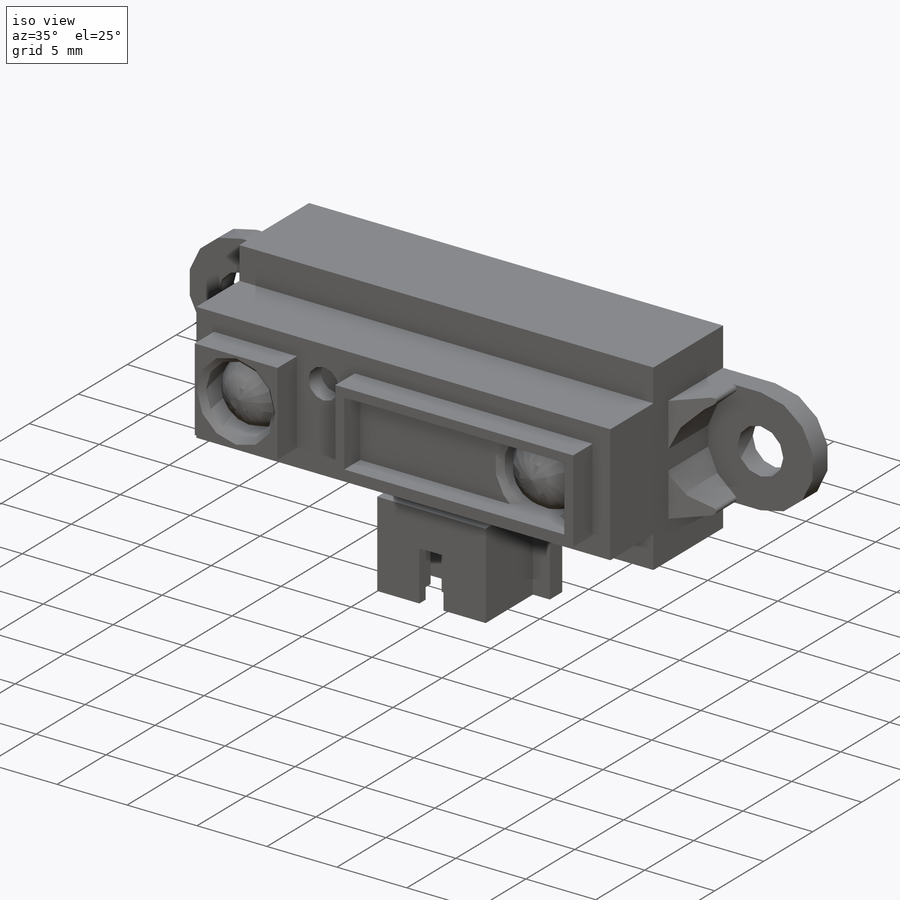
[diagram: iso view]
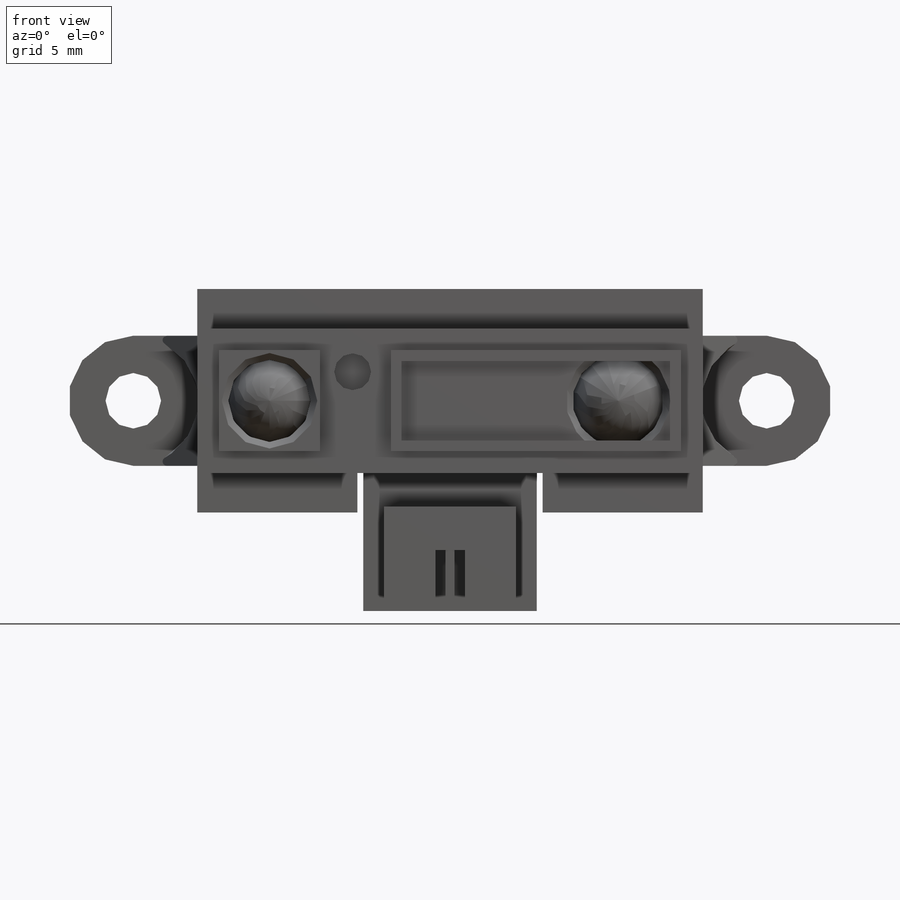
[diagram: front view]
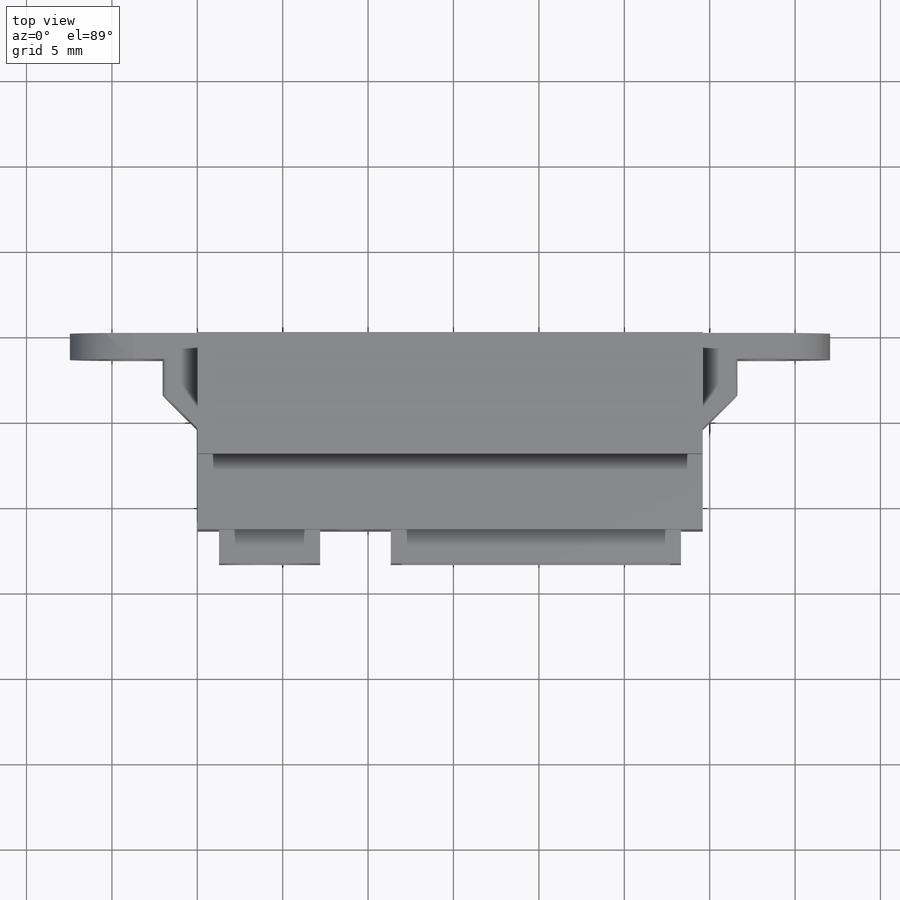
[diagram: top view]
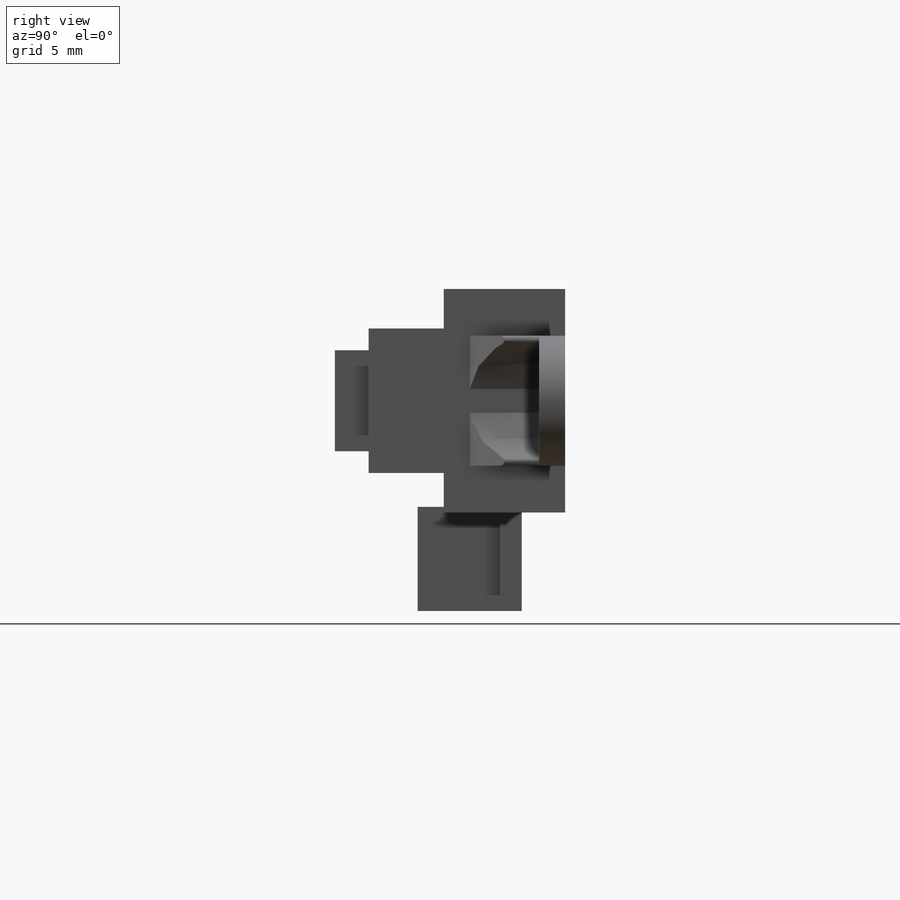
[diagram: right view]
SOLIDWORKS PART (.sldprt)
format: sldprt  version: not decoded by parser v0  size: 657,920 bytes
history: native  units: mm
features: sketch x20, cut_extrude x10, extrude x9, chamfer x2, dome x2, material x1, fillet x1 (+12 scaffold rows collapsed)
feature tree (57):
  scaffold x12  (default folders/planes/origin — collapsed)
  material  "Material <não especificado>"
  sketch  "Sketch1"  dims[D1=13.081mm D2=29.591mm]
  extrude  "Extrude1"  Depth=7.112mm
  sketch  "Sketch2"  dims[D1=8.4582mm]
  extrude  "Extrude2"  Depth=4.3942mm
  sketch  "Sketch3"  dims[D1=1.27mm]
  extrude  "Extrude3"  Depth=1.9812mm
  sketch  "Sketch4"  dims[D1=4.1402mm]
  cut_extrude  "Cut-Extrude1"  [1 undecoded]
  sketch  "Sketch5"  dims[D1=0.635mm]
  cut_extrude  "Cut-Extrude2"  Depth=1.6256mm
  sketch  "Sketch6"  dims[D1=2.159mm D2=1.905mm D3=2.54mm]
  cut_extrude  "Cut-Extrude3"  Depth=1.27mm
  sketch  "Sketch7"  dims[D1=4.826mm]
  cut_extrude  "Cut-Extrude4"  Depth=2.794mm
  chamfer  "Chamfer1"  Distance=0.381mm Angle=45deg
  dome  "Dome1"
  sketch  "Sketch8"  dims[D4=5.334mm D2=3.683mm D3=2.9591mm D1=0.0mm]
  cut_extrude  "Cut-Extrude5"  Depth=1.905mm
  chamfer  "Chamfer2"  Distance=0.381mm Angle=45deg
  sketch  "Sketch9"
  cut_extrude  "Cut-Extrude6"  Depth=0.0254mm
  dome  "Dome2"
  sketch  "Sketch11"  dims[D1=0.762mm]
  cut_extrude  "Cut-Extrude8"  Depth=2.54mm
  sketch  "Sketch10"  dims[D1=10.8458mm]
  cut_extrude  "Cut-Extrude7"  [1 undecoded]
  sketch  "Sketch12"  dims[D1=10.16mm D2=5.7658mm]
  extrude  "Extrude4"  Depth=1.27mm
  sketch  "Sketch13"  dims[D1=0.635mm D2=0.635mm D3=0.635mm D4=1.016mm D5=1.016mm D6=0.635mm D7=0.635mm D8=4.826mm D9=7.747mm]
  extrude  "Extrude5"  Depth=6.096mm
  sketch  "Sketch14"  dims[D1=0.0mm]
  extrude  "Extrude6"  Depth=2.54mm
  sketch  "Sketch15"  dims[D1=1.7272mm]
  cut_extrude  "Cut-Extrude9"  [1 undecoded]
  sketch  "Sketch16"  dims[D1=0.508mm D2=1.651mm D3=1.651mm]
  extrude  "Extrude7"  Depth=3.175mm
  sketch  "Sketch17"
  sketch  "Sketch18"  dims[c1.D2=3.2512mm c1.D4=7.5184mm c1.D3=7.62mm c2.D4=37.084mm c2.D1=0.0mm]
  extrude  "Extrude8"  Depth=1.524mm
  sketch  "Sketch19"  dims[D1=0.0mm D2=0.0mm]
  extrude  "Extrude9"  Depth=4.064mm
  fillet  "Fillet1"  Radius=0.254mm
  sketch  "Sketch20"  dims[D1=2.032mm]
  cut_extrude  "Cut-Extrude10"  [1 undecoded]
decode coverage: 36 of 44 modeling features carry decoded parameters
note: 4 parameter values undecoded
summary: no parameter record found for 4 features
note: suppression state not decoded; provenance and decode notes live in map.json
